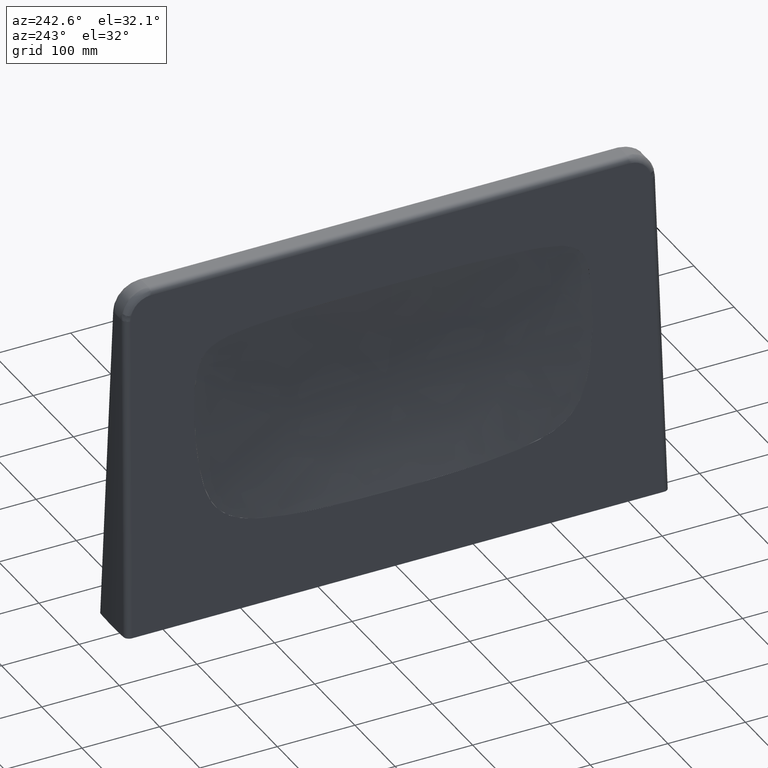
[diagram: clean part render]
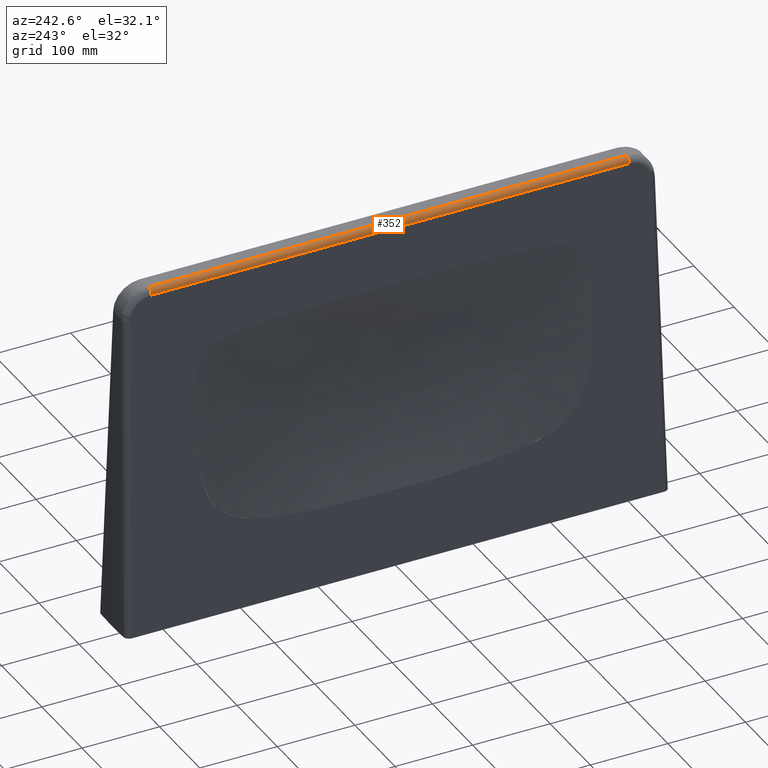
[diagram: same view with one face highlighted and labeled with its STEP entity id]
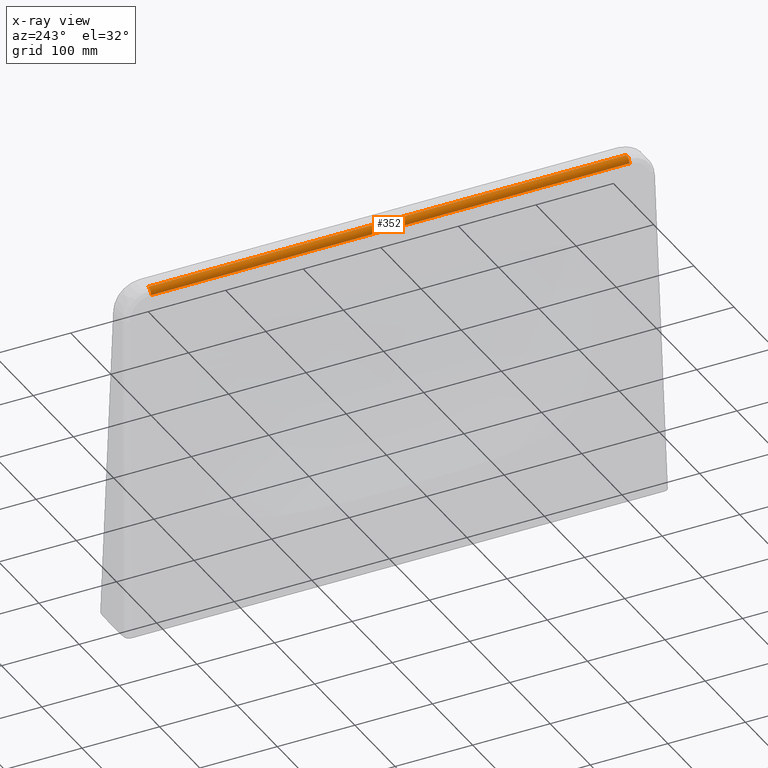
[diagram: x-ray of the same camera — body ghosted, the highlighted face saturated]
A machine part, auxiliary view. The second image highlights one B-rep face of the part: STEP entity #352.
The next image is the same camera in x-ray: the body ghosted, the highlighted face saturated — about 0% of this face is hidden behind the body in this view.
In plain terms, the highlighted cylindrical surface (edge-blend (fillet) strip) has radius 7.5 mm, axis along (0, 1, -0).
Its self-contained STEP definition (entity closure, byte-faithful):
#150=CYLINDRICAL_SURFACE('',#2075,7.5);
#250=CIRCLE('',#2073,7.5);
#251=CIRCLE('',#2074,7.5);
#352=ADVANCED_FACE('',(#496),#150,.T.);
#496=FACE_OUTER_BOUND('',#619,.T.);
#619=EDGE_LOOP('',(#948,#949,#950,#951));
#948=ORIENTED_EDGE('',*,*,#1615,.T.);
#949=ORIENTED_EDGE('',*,*,#1579,.F.);
#950=ORIENTED_EDGE('',*,*,#1616,.F.);
#951=ORIENTED_EDGE('',*,*,#1598,.F.);
#1403=VERTEX_POINT('',#3123);
#1404=VERTEX_POINT('',#3125);
#1419=VERTEX_POINT('',#3580);
#1420=VERTEX_POINT('',#3582);
#1579=EDGE_CURVE('',#1403,#1404,#1819,.T.);
#1598=EDGE_CURVE('',#1419,#1420,#1827,.T.);
#1615=EDGE_CURVE('',#1419,#1404,#250,.T.);
#1616=EDGE_CURVE('',#1420,#1403,#251,.T.);
#1819=LINE('',#3124,#1940);
#1827=LINE('',#3581,#1948);
#1940=VECTOR('',#2377,1.);
#1948=VECTOR('',#2403,1.);
#2073=AXIS2_PLACEMENT_3D('',#3674,#2439,#2440);
#2074=AXIS2_PLACEMENT_3D('',#3705,#2441,#2442);
#2075=AXIS2_PLACEMENT_3D('',#3706,#2443,#2444);
#2377=DIRECTION('',(1.0110591970567E-016,1.,-7.07001463363408E-018));
#2403=DIRECTION('',(0.,-1.,2.6556348456522E-018));
#2439=DIRECTION('',(0.,-1.,0.));
#2440=DIRECTION('',(0.,0.,-1.));
#2441=DIRECTION('',(0.,-1.,0.));
#2442=DIRECTION('',(0.,0.,-1.));
#2443=DIRECTION('',(0.,1.,-2.6556348456522E-018));
#2444=DIRECTION('',(0.,0.,1.));
#3123=CARTESIAN_POINT('',(85.166142138631,-601.890890089196,418.009804996621));
#3124=CARTESIAN_POINT('',(85.1661421386311,14.7135040847104,418.009804996621));
#3125=CARTESIAN_POINT('',(85.1661421386311,14.8908900891961,418.009804996621));
#3580=CARTESIAN_POINT('',(92.4790914749585,14.8908900891961,425.180501384532));
#3581=CARTESIAN_POINT('',(92.4790914749585,31.5,425.180501384532));
#3582=CARTESIAN_POINT('',(92.4790914749585,-601.890890089196,425.180501384532));
#3674=CARTESIAN_POINT('',(92.659003800495,14.8908900891961,417.682659591381));
#3705=CARTESIAN_POINT('',(92.659003800495,-601.890890089196,417.682659591381));
#3706=CARTESIAN_POINT('',(92.659003800495,31.5,417.682659591381));